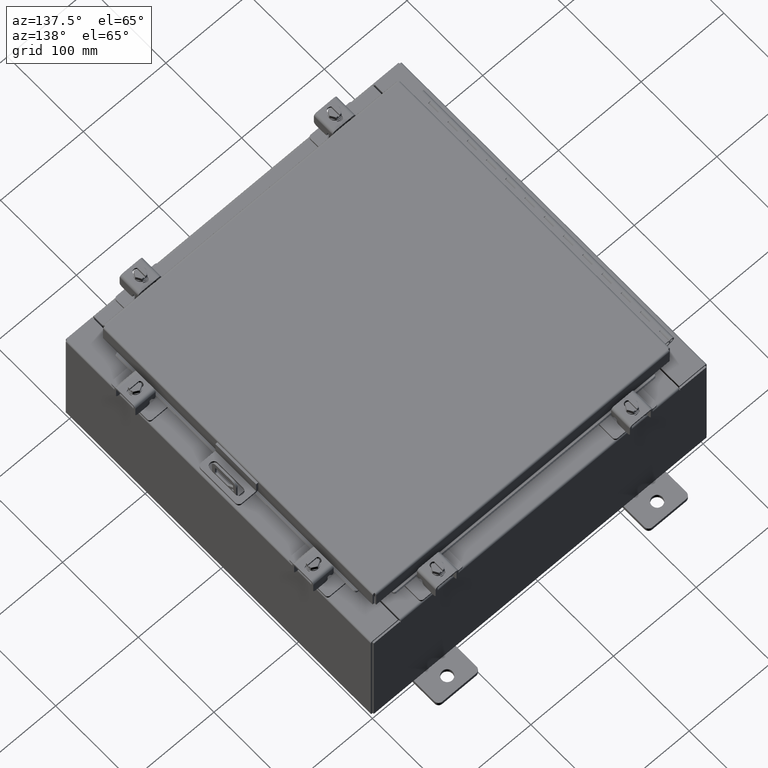
[diagram: clean part render]
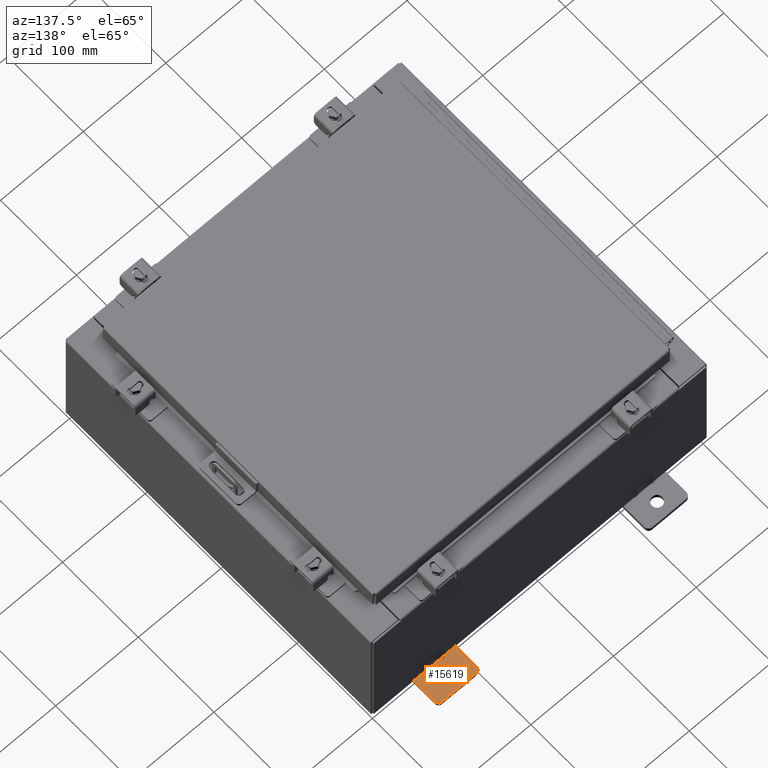
[diagram: same view with one face highlighted and labeled with its STEP entity id]
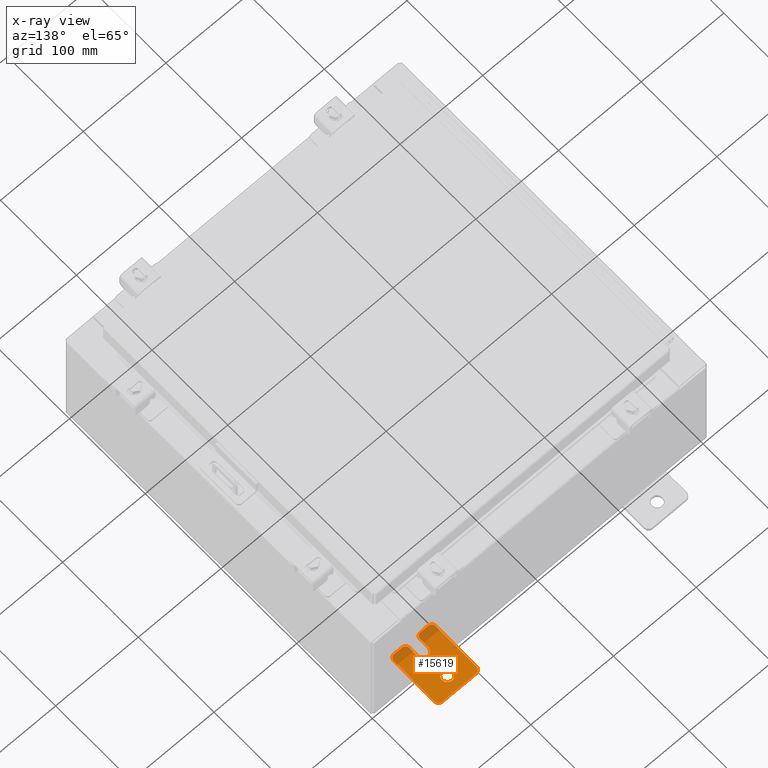
[diagram: x-ray of the same camera — body ghosted, the highlighted face saturated]
A machine part, auxiliary view. The second image highlights one B-rep face of the part: STEP entity #15619.
The next image is the same camera in x-ray: the body ghosted, the highlighted face saturated — about 12% of this face is hidden behind the body in this view.
In plain terms, the highlighted planar face has unit normal (0, 0, 1).
Its self-contained STEP definition (entity closure, byte-faithful):
#628 = DIRECTION ( 'NONE',  ( 1.000000000000000000, 0.0000000000000000000, -0.0000000000000000000 ) ) ;
#729 = CARTESIAN_POINT ( 'NONE',  ( 0.0000000000000000000, 1.249999999999997300, 0.8099999999999935000 ) ) ;
#827 = VECTOR ( 'NONE', #19521, 39.37007874015748100 ) ;
#1094 = CARTESIAN_POINT ( 'NONE',  ( 0.0000000000000000000, 1.059999999999996500, 0.9999999999999953400 ) ) ;
#1169 = DIRECTION ( 'NONE',  ( 0.0000000000000000000, -1.639108796198553600E-015, -1.000000000000000000 ) ) ;
#1773 = EDGE_CURVE ( 'NONE', #7188, #22805, #13268, .T. ) ;
#2202 = ORIENTED_EDGE ( 'NONE', *, *, #22543, .F. ) ;
#2205 = AXIS2_PLACEMENT_3D ( 'NONE', #3909, #18027, #5931 ) ;
#2374 = CARTESIAN_POINT ( 'NONE',  ( 0.0000000000000000000, 1.249999999999994200, -1.000000000000010400 ) ) ;
#2432 = CARTESIAN_POINT ( 'NONE',  ( 4.039428427013647300E-016, 0.6249999999999992200, -9.783840404509077400E-018 ) ) ;
#2726 = VECTOR ( 'NONE', #17336, 39.37007874015748100 ) ;
#2784 = DIRECTION ( 'NONE',  ( 1.000000000000000000, 0.0000000000000000000, -0.0000000000000000000 ) ) ;
#3014 = AXIS2_PLACEMENT_3D ( 'NONE', #11471, #25565, #13497 ) ;
#3162 = AXIS2_PLACEMENT_3D ( 'NONE', #20406, #22433, #10395 ) ;
#3209 = CARTESIAN_POINT ( 'NONE',  ( 0.0000000000000000000, 1.249999999999997600, 0.9999999999999951200 ) ) ;
#3256 = EDGE_CURVE ( 'NONE', #11587, #11915, #10110, .T. ) ;
#3374 = LINE ( 'NONE', #3209, #2726 ) ;
#3909 = CARTESIAN_POINT ( 'NONE',  ( 4.780733988912460100E-016, -0.6249999999999993300, 5.858939755051854500E-017 ) ) ;
#3969 = CIRCLE ( 'NONE', #6475, 0.1900000000000011100 ) ;
#4112 = VERTEX_POINT ( 'NONE', #5012 ) ;
#4142 = EDGE_CURVE ( 'NONE', #6404, #5988, #18987, .T. ) ;
#4488 = DIRECTION ( 'NONE',  ( -5.163192708025533800E-017, 0.0000000000000000000, -1.000000000000000000 ) ) ;
#5012 = CARTESIAN_POINT ( 'NONE',  ( 0.0000000000000000000, 1.059999999999993400, -1.000000000000010000 ) ) ;
#5194 = CARTESIAN_POINT ( 'NONE',  ( 0.0000000000000000000, -1.250000000000003100, 0.4400000000000020000 ) ) ;
#5326 = CARTESIAN_POINT ( 'NONE',  ( 4.780733988912460100E-016, -0.6249999999999993300, -0.2499999999999993900 ) ) ;
#5519 = DIRECTION ( 'NONE',  ( 0.0000000000000000000, 0.0000000000000000000, -1.000000000000000000 ) ) ;
#5557 = DIRECTION ( 'NONE',  ( 6.556435184794182400E-016, 1.000000000000000000, 0.0000000000000000000 ) ) ;
#5669 = ORIENTED_EDGE ( 'NONE', *, *, #14688, .T. ) ;
#5931 = DIRECTION ( 'NONE',  ( -6.523827964459551700E-016, -1.000000000000000000, 0.0000000000000000000 ) ) ;
#5988 = VERTEX_POINT ( 'NONE', #25963 ) ;
#6404 = VERTEX_POINT ( 'NONE', #9325 ) ;
#6475 = AXIS2_PLACEMENT_3D ( 'NONE', #12757, #628, #14762 ) ;
#6580 = CARTESIAN_POINT ( 'NONE',  ( 0.0000000000000000000, -1.060000000000004500, -1.000000000000006400 ) ) ;
#6701 = CIRCLE ( 'NONE', #23087, 0.1900000000000011400 ) ;
#6766 = FACE_BOUND ( 'NONE', #7553, .T. ) ;
#6910 = VERTEX_POINT ( 'NONE', #18879 ) ;
#6936 = CIRCLE ( 'NONE', #16397, 0.1900000000000011100 ) ;
#6966 = ORIENTED_EDGE ( 'NONE', *, *, #3256, .T. ) ;
#7070 = VERTEX_POINT ( 'NONE', #23286 ) ;
#7188 = VERTEX_POINT ( 'NONE', #729 ) ;
#7351 = CARTESIAN_POINT ( 'NONE',  ( 0.0000000000000000000, -1.250000000000005600, -1.000000000000006200 ) ) ;
#7399 = FACE_OUTER_BOUND ( 'NONE', #16665, .T. ) ;
#7504 = EDGE_CURVE ( 'NONE', #11915, #12046, #11343, .T. ) ;
#7548 = DIRECTION ( 'NONE',  ( 1.000000000000000000, 0.0000000000000000000, -0.0000000000000000000 ) ) ;
#7553 = EDGE_LOOP ( 'NONE', ( #11596, #2202 ) ) ;
#7932 = AXIS2_PLACEMENT_3D ( 'NONE', #2432, #16578, #4488 ) ;
#8755 = ORIENTED_EDGE ( 'NONE', *, *, #16137, .T. ) ;
#8874 = CARTESIAN_POINT ( 'NONE',  ( 0.0000000000000000000, -1.060000000000003400, -0.4400000000000005000 ) ) ;
#8922 = VECTOR ( 'NONE', #17412, 39.37007874015748100 ) ;
#9035 = VERTEX_POINT ( 'NONE', #23471 ) ;
#9093 = VERTEX_POINT ( 'NONE', #9676 ) ;
#9246 = DIRECTION ( 'NONE',  ( 1.000000000000000000, -0.0000000000000000000, -5.163192708025532000E-017 ) ) ;
#9325 = CARTESIAN_POINT ( 'NONE',  ( 3.910348609313009100E-016, 0.6249999999999992200, -0.2499999999999999200 ) ) ;
#9463 = VECTOR ( 'NONE', #5557, 39.37007874015748100 ) ;
#9676 = CARTESIAN_POINT ( 'NONE',  ( 1.928684683526964400E-016, -1.060000000000003400, -0.2499999999999994400 ) ) ;
#10043 = DIRECTION ( 'NONE',  ( 0.0000000000000000000, -1.639108796198553600E-015, -1.000000000000000000 ) ) ;
#10110 = LINE ( 'NONE', #23713, #9463 ) ;
#10140 = AXIS2_PLACEMENT_3D ( 'NONE', #21296, #9246, #23329 ) ;
#10395 = DIRECTION ( 'NONE',  ( -0.0000000000000000000, 0.0000000000000000000, -1.000000000000000000 ) ) ;
#10676 = CIRCLE ( 'NONE', #18475, 0.1900000000000011100 ) ;
#10915 = DIRECTION ( 'NONE',  ( 0.0000000000000000000, 0.0000000000000000000, -1.000000000000000000 ) ) ;
#10921 = DIRECTION ( 'NONE',  ( 1.000000000000000000, 0.0000000000000000000, -0.0000000000000000000 ) ) ;
#11343 = CIRCLE ( 'NONE', #2205, 0.2499999999999999200 ) ;
#11471 = CARTESIAN_POINT ( 'NONE',  ( 0.0000000000000000000, -1.060000000000004100, -0.8100000000000050500 ) ) ;
#11563 = VECTOR ( 'NONE', #1169, 39.37007874015748100 ) ;
#11584 = LINE ( 'NONE', #7351, #827 ) ;
#11587 = VERTEX_POINT ( 'NONE', #11663 ) ;
#11596 = ORIENTED_EDGE ( 'NONE', *, *, #4142, .F. ) ;
#11663 = CARTESIAN_POINT ( 'NONE',  ( 1.928684683526972300E-016, -1.060000000000002100, 0.2500000000000005000 ) ) ;
#11811 = VERTEX_POINT ( 'NONE', #22390 ) ;
#11915 = VERTEX_POINT ( 'NONE', #20706 ) ;
#12046 = VERTEX_POINT ( 'NONE', #25106 ) ;
#12467 = EDGE_CURVE ( 'NONE', #16535, #6910, #3969, .T. ) ;
#12757 = CARTESIAN_POINT ( 'NONE',  ( 0.0000000000000000000, -1.060000000000001600, 0.8099999999999978300 ) ) ;
#13268 = CIRCLE ( 'NONE', #21107, 0.1900000000000011100 ) ;
#13390 = VECTOR ( 'NONE', #22579, 39.37007874015748100 ) ;
#13497 = DIRECTION ( 'NONE',  ( 0.0000000000000000000, 0.0000000000000000000, -1.000000000000000000 ) ) ;
#13922 = ORIENTED_EDGE ( 'NONE', *, *, #15494, .T. ) ;
#14483 = VERTEX_POINT ( 'NONE', #6580 ) ;
#14688 = EDGE_CURVE ( 'NONE', #9035, #7070, #22906, .T. ) ;
#14762 = DIRECTION ( 'NONE',  ( 0.0000000000000000000, 0.0000000000000000000, -1.000000000000000000 ) ) ;
#14885 = CARTESIAN_POINT ( 'NONE',  ( 0.0000000000000000000, -1.060000000000002100, 0.4400000000000016700 ) ) ;
#15494 = EDGE_CURVE ( 'NONE', #6910, #20373, #20031, .T. ) ;
#15619 = ADVANCED_FACE ( 'NONE', ( #6766, #7399 ), #18380, .T. ) ;
#16136 = CIRCLE ( 'NONE', #7932, 0.2499999999999999200 ) ;
#16137 = EDGE_CURVE ( 'NONE', #11811, #7188, #18735, .T. ) ;
#16397 = AXIS2_PLACEMENT_3D ( 'NONE', #8874, #22955, #10915 ) ;
#16429 = ORIENTED_EDGE ( 'NONE', *, *, #20731, .T. ) ;
#16535 = VERTEX_POINT ( 'NONE', #21850 ) ;
#16578 = DIRECTION ( 'NONE',  ( 1.000000000000000000, -0.0000000000000000000, -5.163192708025532000E-017 ) ) ;
#16665 = EDGE_LOOP ( 'NONE', ( #18132, #26104, #13922, #16429, #6966, #19831, #22342, #21790, #5669, #26035, #19326, #22252, #8755, #23262 ) ) ;
#16926 = DIRECTION ( 'NONE',  ( 0.0000000000000000000, 0.0000000000000000000, -1.000000000000000000 ) ) ;
#17336 = DIRECTION ( 'NONE',  ( 0.0000000000000000000, -1.000000000000000000, 1.639108796198558100E-015 ) ) ;
#17412 = DIRECTION ( 'NONE',  ( -6.556435184794182400E-016, -1.000000000000000000, -1.639108796198545600E-016 ) ) ;
#18027 = DIRECTION ( 'NONE',  ( -1.000000000000000000, 6.523827964459549700E-016, 5.163192708025532000E-017 ) ) ;
#18132 = ORIENTED_EDGE ( 'NONE', *, *, #25217, .T. ) ;
#18380 = PLANE ( 'NONE',  #3162 ) ;
#18475 = AXIS2_PLACEMENT_3D ( 'NONE', #22961, #10921, #24995 ) ;
#18735 = LINE ( 'NONE', #2374, #13390 ) ;
#18879 = CARTESIAN_POINT ( 'NONE',  ( 0.0000000000000000000, -1.250000000000002400, 0.8099999999999980500 ) ) ;
#18987 = CIRCLE ( 'NONE', #10140, 0.2499999999999999200 ) ;
#19326 = ORIENTED_EDGE ( 'NONE', *, *, #25273, .T. ) ;
#19521 = DIRECTION ( 'NONE',  ( 0.0000000000000000000, 1.000000000000000000, -1.639108796198558100E-015 ) ) ;
#19545 = CARTESIAN_POINT ( 'NONE',  ( 0.0000000000000000000, 1.059999999999996300, 0.8099999999999938400 ) ) ;
#19644 = LINE ( 'NONE', #5326, #8922 ) ;
#19831 = ORIENTED_EDGE ( 'NONE', *, *, #7504, .T. ) ;
#20031 = LINE ( 'NONE', #24106, #20656 ) ;
#20373 = VERTEX_POINT ( 'NONE', #5194 ) ;
#20406 = CARTESIAN_POINT ( 'NONE',  ( 0.0000000000000000000, 0.0000000000000000000, 0.0000000000000000000 ) ) ;
#20656 = VECTOR ( 'NONE', #10043, 39.37007874015748100 ) ;
#20706 = CARTESIAN_POINT ( 'NONE',  ( 0.0000000000000000000, -0.6249999999999992200, 0.2500000000000005000 ) ) ;
#20731 = EDGE_CURVE ( 'NONE', #20373, #11587, #6701, .T. ) ;
#21107 = AXIS2_PLACEMENT_3D ( 'NONE', #19545, #7548, #5519 ) ;
#21271 = CARTESIAN_POINT ( 'NONE',  ( 0.0000000000000000000, -1.250000000000002200, 0.9999999999999992200 ) ) ;
#21296 = CARTESIAN_POINT ( 'NONE',  ( 4.039428427013647300E-016, 0.6249999999999992200, -9.783840404509077400E-018 ) ) ;
#21663 = EDGE_CURVE ( 'NONE', #12046, #9093, #19644, .T. ) ;
#21790 = ORIENTED_EDGE ( 'NONE', *, *, #23198, .T. ) ;
#21850 = CARTESIAN_POINT ( 'NONE',  ( 0.0000000000000000000, -1.060000000000001200, 0.9999999999999988900 ) ) ;
#22162 = EDGE_CURVE ( 'NONE', #7070, #14483, #24972, .T. ) ;
#22252 = ORIENTED_EDGE ( 'NONE', *, *, #25072, .T. ) ;
#22342 = ORIENTED_EDGE ( 'NONE', *, *, #21663, .T. ) ;
#22390 = CARTESIAN_POINT ( 'NONE',  ( 0.0000000000000000000, 1.249999999999994700, -0.8100000000000092700 ) ) ;
#22433 = DIRECTION ( 'NONE',  ( 1.000000000000000000, 0.0000000000000000000, -0.0000000000000000000 ) ) ;
#22543 = EDGE_CURVE ( 'NONE', #5988, #6404, #16136, .T. ) ;
#22579 = DIRECTION ( 'NONE',  ( 0.0000000000000000000, 1.639108796198553600E-015, 1.000000000000000000 ) ) ;
#22805 = VERTEX_POINT ( 'NONE', #1094 ) ;
#22906 = LINE ( 'NONE', #21271, #11563 ) ;
#22955 = DIRECTION ( 'NONE',  ( 1.000000000000000000, 0.0000000000000000000, -0.0000000000000000000 ) ) ;
#22961 = CARTESIAN_POINT ( 'NONE',  ( 0.0000000000000000000, 1.059999999999993600, -0.8100000000000089400 ) ) ;
#23087 = AXIS2_PLACEMENT_3D ( 'NONE', #14885, #2784, #16926 ) ;
#23198 = EDGE_CURVE ( 'NONE', #9093, #9035, #6936, .T. ) ;
#23262 = ORIENTED_EDGE ( 'NONE', *, *, #1773, .T. ) ;
#23286 = CARTESIAN_POINT ( 'NONE',  ( 0.0000000000000000000, -1.250000000000005300, -0.8100000000000047200 ) ) ;
#23329 = DIRECTION ( 'NONE',  ( -5.163192708025533800E-017, 0.0000000000000000000, -1.000000000000000000 ) ) ;
#23471 = CARTESIAN_POINT ( 'NONE',  ( 0.0000000000000000000, -1.250000000000004700, -0.4400000000000002200 ) ) ;
#23713 = CARTESIAN_POINT ( 'NONE',  ( 6.829619984160658000E-017, -1.250000000000003800, 0.2500000000000005000 ) ) ;
#24106 = CARTESIAN_POINT ( 'NONE',  ( 0.0000000000000000000, -1.250000000000002200, 0.9999999999999992200 ) ) ;
#24972 = CIRCLE ( 'NONE', #3014, 0.1900000000000011100 ) ;
#24995 = DIRECTION ( 'NONE',  ( 0.0000000000000000000, 0.0000000000000000000, -1.000000000000000000 ) ) ;
#25072 = EDGE_CURVE ( 'NONE', #4112, #11811, #10676, .T. ) ;
#25106 = CARTESIAN_POINT ( 'NONE',  ( 4.780733988912460100E-016, -0.6249999999999993300, -0.2499999999999998600 ) ) ;
#25217 = EDGE_CURVE ( 'NONE', #22805, #16535, #3374, .T. ) ;
#25273 = EDGE_CURVE ( 'NONE', #14483, #4112, #11584, .T. ) ;
#25565 = DIRECTION ( 'NONE',  ( 1.000000000000000000, 0.0000000000000000000, -0.0000000000000000000 ) ) ;
#25963 = CARTESIAN_POINT ( 'NONE',  ( 4.168508244714285900E-016, 0.6249999999999992200, 0.2499999999999999200 ) ) ;
#26035 = ORIENTED_EDGE ( 'NONE', *, *, #22162, .T. ) ;
#26104 = ORIENTED_EDGE ( 'NONE', *, *, #12467, .T. ) ;